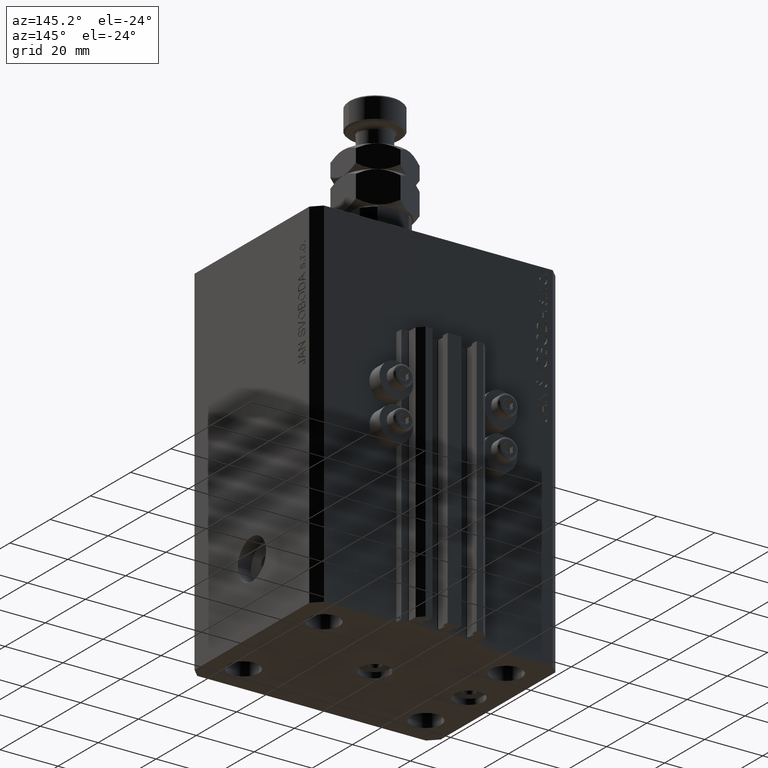
[diagram: clean part render]
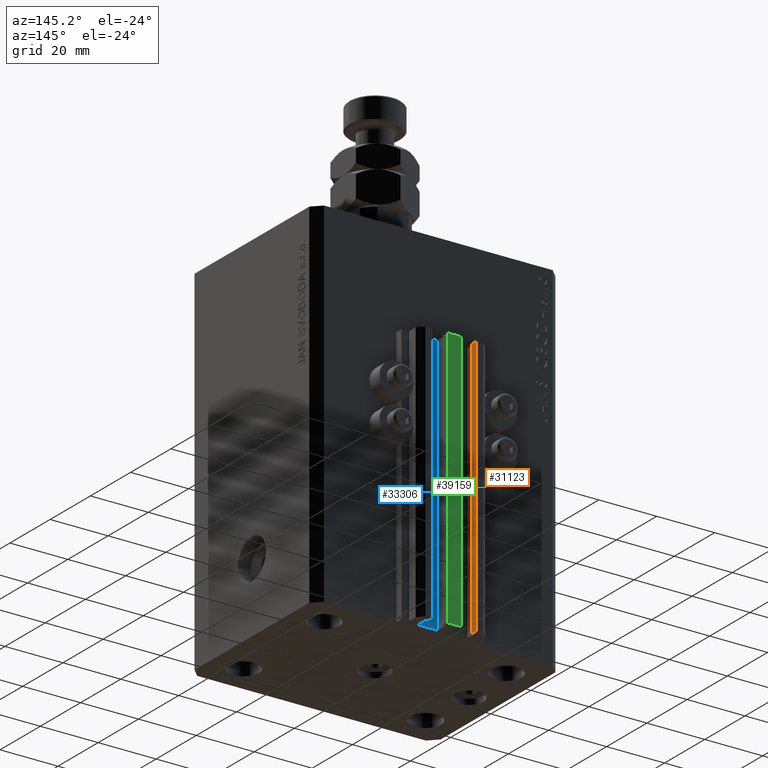
[diagram: same view with three faces highlighted in distinct colors, each labeled with its STEP entity id]
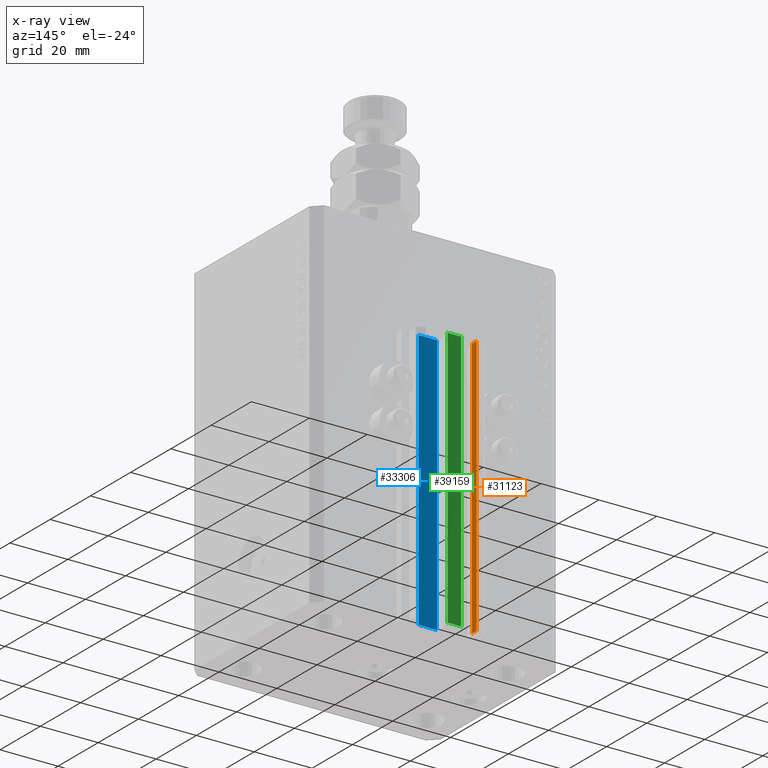
[diagram: x-ray of the same camera — body ghosted, the three highlighted faces saturated]
A machine part, auxiliary view with three faces highlighted in distinct colors.
The next image is the same camera in x-ray (body ghosted, the three faces saturated) — at least one of them is partly hidden behind the body in this view.
Their STEP definitions:

[orange] entity #31123 — the highlighted planar face has unit normal (1, 0, 0).
#782 = ORIENTED_EDGE ( 'NONE', *, *, #3602, .T. ) ;
#1004 = VERTEX_POINT ( 'NONE', #16289 ) ;
#3602 = EDGE_CURVE ( 'NONE', #46286, #1004, #47871, .T. ) ;
#5438 = EDGE_CURVE ( 'NONE', #14093, #1004, #14310, .T. ) ;
#8476 = VECTOR ( 'NONE', #22071, 1000.000000000000000 ) ;
#12848 = VECTOR ( 'NONE', #20891, 1000.000000000000000 ) ;
#14093 = VERTEX_POINT ( 'NONE', #17998 ) ;
#14310 = LINE ( 'NONE', #44055, #39828 ) ;
#16289 = CARTESIAN_POINT ( 'NONE',  ( -7.650000000000002132, 39.49999999999999289, -33.00000000000000000 ) ) ;
#17958 = LINE ( 'NONE', #33068, #46648 ) ;
#17998 = CARTESIAN_POINT ( 'NONE',  ( -7.650000000000002132, 37.09999999999999432, -33.00000000000000000 ) ) ;
#19545 = CARTESIAN_POINT ( 'NONE',  ( -7.650000000000002132, 37.09999999999999432, -123.0000000000000000 ) ) ;
#20891 = DIRECTION ( 'NONE',  ( 0.000000000000000000, 0.000000000000000000, 1.000000000000000000 ) ) ;
#21099 = EDGE_CURVE ( 'NONE', #29342, #46286, #23644, .T. ) ;
#22071 = DIRECTION ( 'NONE',  ( 0.000000000000000000, 1.000000000000000000, 0.000000000000000000 ) ) ;
#23644 = LINE ( 'NONE', #38770, #8476 ) ;
#24862 = DIRECTION ( 'NONE',  ( 1.000000000000000000, 0.000000000000000000, 0.000000000000000000 ) ) ;
#27781 = AXIS2_PLACEMENT_3D ( 'NONE', #36745, #24862, #40704 ) ;
#29272 = ORIENTED_EDGE ( 'NONE', *, *, #44824, .F. ) ;
#29342 = VERTEX_POINT ( 'NONE', #19545 ) ;
#31123 = ADVANCED_FACE ( 'NONE', ( #47884 ), #33025, .T. ) ;
#33025 = PLANE ( 'NONE',  #27781 ) ;
#33068 = CARTESIAN_POINT ( 'NONE',  ( -7.650000000000002132, 37.09999999999999432, -123.0000000000000000 ) ) ;
#36374 = DIRECTION ( 'NONE',  ( 0.000000000000000000, 1.000000000000000000, 0.000000000000000000 ) ) ;
#36745 = CARTESIAN_POINT ( 'NONE',  ( -7.650000000000002132, 37.09999999999999432, -123.0000000000000000 ) ) ;
#38770 = CARTESIAN_POINT ( 'NONE',  ( -7.650000000000002132, 37.09999999999999432, -123.0000000000000000 ) ) ;
#39828 = VECTOR ( 'NONE', #36374, 1000.000000000000000 ) ;
#40464 = ORIENTED_EDGE ( 'NONE', *, *, #5438, .F. ) ;
#40704 = DIRECTION ( 'NONE',  ( 0.000000000000000000, 0.000000000000000000, -1.000000000000000000 ) ) ;
#43060 = DIRECTION ( 'NONE',  ( 0.000000000000000000, 0.000000000000000000, 1.000000000000000000 ) ) ;
#44055 = CARTESIAN_POINT ( 'NONE',  ( -7.650000000000002132, 37.09999999999999432, -33.00000000000000000 ) ) ;
#44824 = EDGE_CURVE ( 'NONE', #29342, #14093, #17958, .T. ) ;
#45524 = EDGE_LOOP ( 'NONE', ( #40464, #29272, #45583, #782 ) ) ;
#45583 = ORIENTED_EDGE ( 'NONE', *, *, #21099, .T. ) ;
#46286 = VERTEX_POINT ( 'NONE', #46291 ) ;
#46291 = CARTESIAN_POINT ( 'NONE',  ( -7.650000000000002132, 39.49999999999999289, -123.0000000000000000 ) ) ;
#46648 = VECTOR ( 'NONE', #43060, 1000.000000000000000 ) ;
#47140 = CARTESIAN_POINT ( 'NONE',  ( -7.650000000000002132, 39.49999999999999289, -123.0000000000000000 ) ) ;
#47871 = LINE ( 'NONE', #47140, #12848 ) ;
#47884 = FACE_OUTER_BOUND ( 'NONE', #45524, .T. ) ;

[blue] entity #33306 — the highlighted planar face has unit normal (0, 1, 0).
#1187 = EDGE_LOOP ( 'NONE', ( #8356, #30738, #15136, #13190 ) ) ;
#2135 = DIRECTION ( 'NONE',  ( -1.000000000000000000, 0.000000000000000000, 0.000000000000000000 ) ) ;
#2472 = VECTOR ( 'NONE', #18408, 1000.000000000000000 ) ;
#3544 = LINE ( 'NONE', #41674, #2472 ) ;
#5648 = CARTESIAN_POINT ( 'NONE',  ( 1.800000000000000933, 33.50000000000000000, -33.00000000000000000 ) ) ;
#6714 = CARTESIAN_POINT ( 'NONE',  ( 8.199999999999999289, 33.50000000000000000, -123.0000000000000000 ) ) ;
#8356 = ORIENTED_EDGE ( 'NONE', *, *, #9855, .F. ) ;
#9855 = EDGE_CURVE ( 'NONE', #21202, #33439, #17499, .T. ) ;
#13190 = ORIENTED_EDGE ( 'NONE', *, *, #31174, .T. ) ;
#13602 = LINE ( 'NONE', #28703, #33940 ) ;
#15136 = ORIENTED_EDGE ( 'NONE', *, *, #21712, .T. ) ;
#15812 = DIRECTION ( 'NONE',  ( 0.000000000000000000, 0.000000000000000000, 1.000000000000000000 ) ) ;
#17499 = LINE ( 'NONE', #36079, #36162 ) ;
#18408 = DIRECTION ( 'NONE',  ( 0.000000000000000000, 0.000000000000000000, 1.000000000000000000 ) ) ;
#21202 = VERTEX_POINT ( 'NONE', #45357 ) ;
#21712 = EDGE_CURVE ( 'NONE', #45596, #35600, #28518, .T. ) ;
#23114 = AXIS2_PLACEMENT_3D ( 'NONE', #45788, #42091, #15812 ) ;
#24445 = CARTESIAN_POINT ( 'NONE',  ( 8.199999999999999289, 33.50000000000000000, -123.0000000000000000 ) ) ;
#25356 = EDGE_CURVE ( 'NONE', #45596, #21202, #13602, .T. ) ;
#28518 = LINE ( 'NONE', #6714, #32215 ) ;
#28703 = CARTESIAN_POINT ( 'NONE',  ( 8.199999999999999289, 33.50000000000000000, -123.0000000000000000 ) ) ;
#30738 = ORIENTED_EDGE ( 'NONE', *, *, #25356, .F. ) ;
#31174 = EDGE_CURVE ( 'NONE', #35600, #33439, #3544, .T. ) ;
#31421 = PLANE ( 'NONE',  #23114 ) ;
#32215 = VECTOR ( 'NONE', #43653, 1000.000000000000000 ) ;
#33306 = ADVANCED_FACE ( 'NONE', ( #46517 ), #31421, .T. ) ;
#33439 = VERTEX_POINT ( 'NONE', #5648 ) ;
#33940 = VECTOR ( 'NONE', #43836, 1000.000000000000000 ) ;
#35600 = VERTEX_POINT ( 'NONE', #48210 ) ;
#36079 = CARTESIAN_POINT ( 'NONE',  ( 8.199999999999999289, 33.50000000000000000, -33.00000000000000000 ) ) ;
#36162 = VECTOR ( 'NONE', #2135, 1000.000000000000000 ) ;
#41674 = CARTESIAN_POINT ( 'NONE',  ( 1.800000000000000933, 33.50000000000000000, -123.0000000000000000 ) ) ;
#42091 = DIRECTION ( 'NONE',  ( 0.000000000000000000, 1.000000000000000000, -0.000000000000000000 ) ) ;
#43653 = DIRECTION ( 'NONE',  ( -1.000000000000000000, 0.000000000000000000, 0.000000000000000000 ) ) ;
#43836 = DIRECTION ( 'NONE',  ( 0.000000000000000000, 0.000000000000000000, 1.000000000000000000 ) ) ;
#45357 = CARTESIAN_POINT ( 'NONE',  ( 8.199999999999999289, 33.50000000000000000, -33.00000000000000000 ) ) ;
#45596 = VERTEX_POINT ( 'NONE', #24445 ) ;
#45788 = CARTESIAN_POINT ( 'NONE',  ( 8.199999999999999289, 33.50000000000000000, -123.0000000000000000 ) ) ;
#46517 = FACE_OUTER_BOUND ( 'NONE', #1187, .T. ) ;
#48210 = CARTESIAN_POINT ( 'NONE',  ( 1.800000000000000933, 33.50000000000000000, -123.0000000000000000 ) ) ;

[green] entity #39159 — the highlighted planar face has unit normal (0, -1, 0).
#2541 = LINE ( 'NONE', #40440, #45331 ) ;
#3104 = EDGE_CURVE ( 'NONE', #37033, #28955, #12775, .T. ) ;
#4745 = CARTESIAN_POINT ( 'NONE',  ( -2.350000000000003642, 39.50000000000000711, -33.00000000000000000 ) ) ;
#4854 = DIRECTION ( 'NONE',  ( 0.000000000000000000, 0.000000000000000000, 1.000000000000000000 ) ) ;
#7858 = ORIENTED_EDGE ( 'NONE', *, *, #40907, .F. ) ;
#8368 = LINE ( 'NONE', #27201, #44190 ) ;
#10637 = FACE_OUTER_BOUND ( 'NONE', #30098, .T. ) ;
#12775 = LINE ( 'NONE', #27389, #41351 ) ;
#12897 = AXIS2_PLACEMENT_3D ( 'NONE', #47809, #29722, #45554 ) ;
#15072 = DIRECTION ( 'NONE',  ( 1.000000000000000000, 0.000000000000000000, 0.000000000000000000 ) ) ;
#20458 = ORIENTED_EDGE ( 'NONE', *, *, #38878, .F. ) ;
#20556 = CARTESIAN_POINT ( 'NONE',  ( -2.350000000000003642, 39.50000000000000711, -123.0000000000000000 ) ) ;
#22576 = DIRECTION ( 'NONE',  ( 0.000000000000000000, 0.000000000000000000, 1.000000000000000000 ) ) ;
#22950 = ORIENTED_EDGE ( 'NONE', *, *, #41967, .T. ) ;
#23769 = DIRECTION ( 'NONE',  ( 1.000000000000000000, 0.000000000000000000, 0.000000000000000000 ) ) ;
#25804 = VERTEX_POINT ( 'NONE', #48079 ) ;
#27201 = CARTESIAN_POINT ( 'NONE',  ( -2.350000000000003642, 39.50000000000000711, -33.00000000000000000 ) ) ;
#27389 = CARTESIAN_POINT ( 'NONE',  ( -2.350000000000003642, 39.50000000000000711, -123.0000000000000000 ) ) ;
#27729 = LINE ( 'NONE', #20556, #42185 ) ;
#28955 = VERTEX_POINT ( 'NONE', #4745 ) ;
#29722 = DIRECTION ( 'NONE',  ( 0.000000000000000000, -1.000000000000000000, 0.000000000000000000 ) ) ;
#30098 = EDGE_LOOP ( 'NONE', ( #22950, #20458, #7858, #38766 ) ) ;
#31843 = CARTESIAN_POINT ( 'NONE',  ( 2.349999999999999645, 39.50000000000000711, -123.0000000000000000 ) ) ;
#36418 = PLANE ( 'NONE',  #12897 ) ;
#37033 = VERTEX_POINT ( 'NONE', #41653 ) ;
#38766 = ORIENTED_EDGE ( 'NONE', *, *, #3104, .T. ) ;
#38878 = EDGE_CURVE ( 'NONE', #42288, #25804, #2541, .T. ) ;
#39159 = ADVANCED_FACE ( 'NONE', ( #10637 ), #36418, .F. ) ;
#40440 = CARTESIAN_POINT ( 'NONE',  ( 2.349999999999999645, 39.50000000000000711, -123.0000000000000000 ) ) ;
#40907 = EDGE_CURVE ( 'NONE', #37033, #42288, #27729, .T. ) ;
#41351 = VECTOR ( 'NONE', #4854, 1000.000000000000000 ) ;
#41653 = CARTESIAN_POINT ( 'NONE',  ( -2.350000000000003642, 39.50000000000000711, -123.0000000000000000 ) ) ;
#41967 = EDGE_CURVE ( 'NONE', #28955, #25804, #8368, .T. ) ;
#42185 = VECTOR ( 'NONE', #23769, 1000.000000000000000 ) ;
#42288 = VERTEX_POINT ( 'NONE', #31843 ) ;
#44190 = VECTOR ( 'NONE', #15072, 1000.000000000000000 ) ;
#45331 = VECTOR ( 'NONE', #22576, 1000.000000000000000 ) ;
#45554 = DIRECTION ( 'NONE',  ( 0.000000000000000000, -0.000000000000000000, -1.000000000000000000 ) ) ;
#47809 = CARTESIAN_POINT ( 'NONE',  ( -2.350000000000003642, 39.50000000000000711, -123.0000000000000000 ) ) ;
#48079 = CARTESIAN_POINT ( 'NONE',  ( 2.349999999999999645, 39.50000000000000711, -33.00000000000000000 ) ) ;